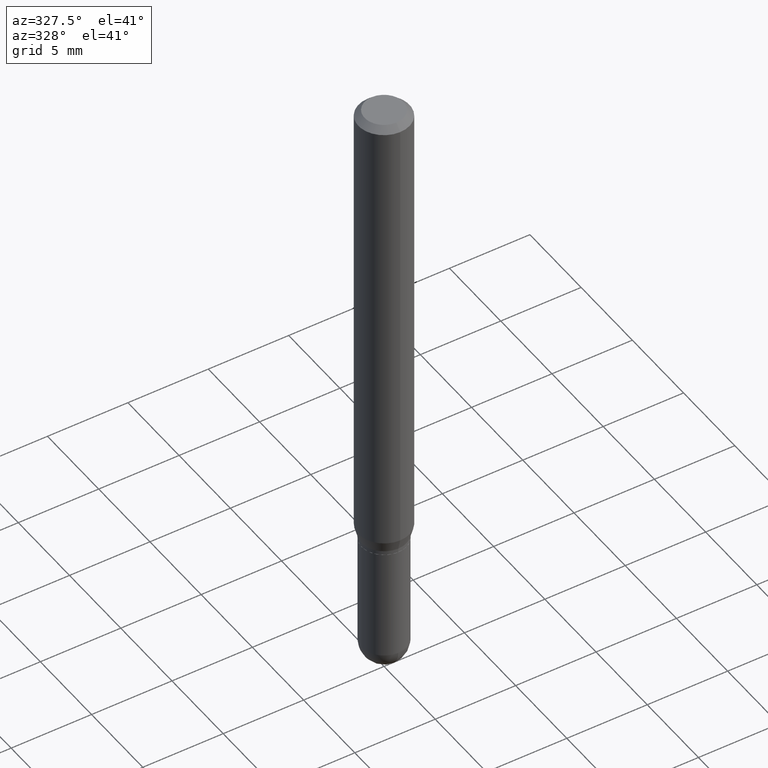
[diagram: clean part render]
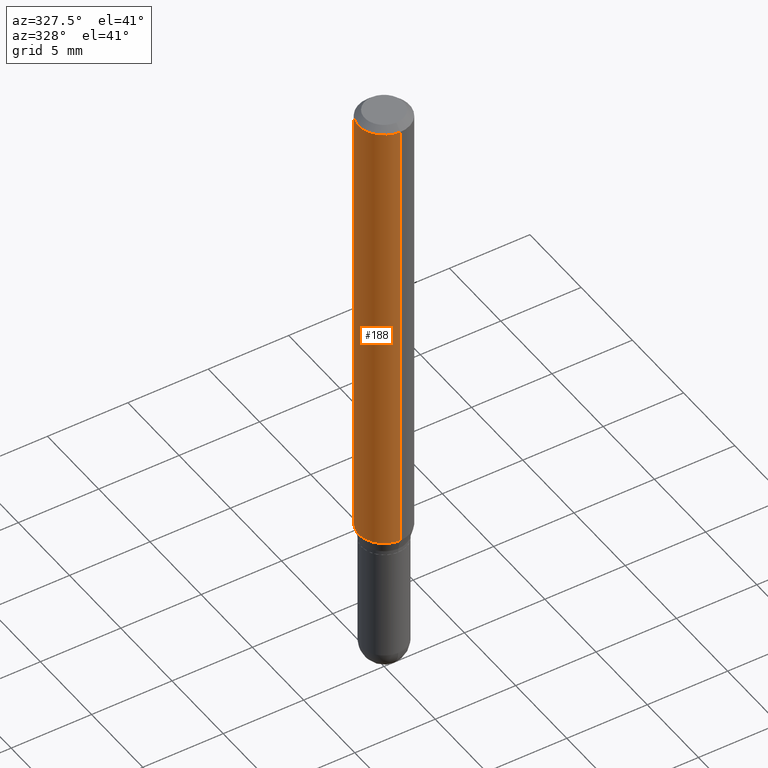
[diagram: same view with one face highlighted and labeled with its STEP entity id]
A machine part, auxiliary view. The second image highlights one B-rep face of the part: STEP entity #188.
In plain terms, the highlighted cylindrical surface (edge-blend (fillet) strip) has radius 1.5875 mm, axis along (-0, 0, 1).
Its self-contained STEP definition (entity closure, byte-faithful):
#15 = CARTESIAN_POINT ( 'NONE',  ( 2.767946174287279245E-29, -3.952888868924657583E-15, -1.132009618943234486 ) ) ;
#20 = FACE_OUTER_BOUND ( 'NONE', #182, .T. ) ;
#45 = AXIS2_PLACEMENT_3D ( 'NONE', #15, #165, #132 ) ;
#62 = CARTESIAN_POINT ( 'NONE',  ( -4.364351673553916201E-16, -0.06250000000000000000, 2.182451016082575473E-16 ) ) ;
#77 = VERTEX_POINT ( 'NONE', #281 ) ;
#91 = CARTESIAN_POINT ( 'NONE',  ( 4.440892098500625669E-16, 0.06250000000000000000, -2.182451016082575473E-16 ) ) ;
#114 = ORIENTED_EDGE ( 'NONE', *, *, #324, .T. ) ;
#115 = ORIENTED_EDGE ( 'NONE', *, *, #229, .F. ) ;
#121 = DIRECTION ( 'NONE',  ( -2.445161355493817803E-29, 3.491921625732120757E-15, 1.000000000000000000 ) ) ;
#132 = DIRECTION ( 'NONE',  ( -6.982962677686265922E-15, -1.000000000000000000, 4.370956789862821150E-15 ) ) ;
#165 = DIRECTION ( 'NONE',  ( -2.445161355493817803E-29, 3.491921625732120757E-15, 1.000000000000000000 ) ) ;
#182 = EDGE_LOOP ( 'NONE', ( #200, #114, #486, #115 ) ) ;
#187 = VECTOR ( 'NONE', #243, 39.37007874015748143 ) ;
#188 = ADVANCED_FACE ( 'NONE', ( #20 ), #375, .T. ) ;
#197 = DIRECTION ( 'NONE',  ( -6.982962677686265922E-15, -1.000000000000000000, 3.483106191921935554E-15 ) ) ;
#200 = ORIENTED_EDGE ( 'NONE', *, *, #300, .F. ) ;
#205 = CARTESIAN_POINT ( 'NONE',  ( 4.440892098500901277E-16, 0.06249999999999603789, -1.132009618943234708 ) ) ;
#229 = EDGE_CURVE ( 'NONE', #77, #470, #330, .T. ) ;
#243 = DIRECTION ( 'NONE',  ( -2.445161355493817803E-29, 3.491921625732120363E-15, 1.000000000000000000 ) ) ;
#251 = AXIS2_PLACEMENT_3D ( 'NONE', #272, #121, #197 ) ;
#255 = CARTESIAN_POINT ( 'NONE',  ( -4.364351673553912750E-16, -0.06250000000000005551, -0.01499999999999979128 ) ) ;
#272 = CARTESIAN_POINT ( 'NONE',  ( 3.667742033240729280E-31, -5.237882438598184587E-17, -0.01500000000000000812 ) ) ;
#281 = CARTESIAN_POINT ( 'NONE',  ( 4.440892098500904235E-16, 0.06249999999999995143, -0.01500000000000022669 ) ) ;
#286 = DIRECTION ( 'NONE',  ( -6.982962677686265922E-15, -1.000000000000000000, 3.491921625732120757E-15 ) ) ;
#300 = EDGE_CURVE ( 'NONE', #317, #77, #321, .T. ) ;
#304 = VECTOR ( 'NONE', #417, 39.37007874015748143 ) ;
#308 = DIRECTION ( 'NONE',  ( -2.445161355493817803E-29, 3.491921625732120757E-15, 1.000000000000000000 ) ) ;
#317 = VERTEX_POINT ( 'NONE', #205 ) ;
#321 = LINE ( 'NONE', #91, #187 ) ;
#324 = EDGE_CURVE ( 'NONE', #317, #430, #450, .T. ) ;
#330 = CIRCLE ( 'NONE', #251, 0.06250000000000000000 ) ;
#346 = EDGE_CURVE ( 'NONE', #430, #470, #376, .T. ) ;
#375 = CYLINDRICAL_SURFACE ( 'NONE', #482, 0.06250000000000000000 ) ;
#376 = LINE ( 'NONE', #62, #304 ) ;
#401 = CARTESIAN_POINT ( 'NONE',  ( 0.000000000000000000, 0.000000000000000000, 0.000000000000000000 ) ) ;
#417 = DIRECTION ( 'NONE',  ( -2.445161355493817803E-29, 3.491921625732120363E-15, 1.000000000000000000 ) ) ;
#430 = VERTEX_POINT ( 'NONE', #462 ) ;
#450 = CIRCLE ( 'NONE', #45, 0.06250000000000000000 ) ;
#462 = CARTESIAN_POINT ( 'NONE',  ( -4.364351673553640100E-16, -0.06250000000000395517, -1.132009618943234264 ) ) ;
#470 = VERTEX_POINT ( 'NONE', #255 ) ;
#482 = AXIS2_PLACEMENT_3D ( 'NONE', #401, #308, #286 ) ;
#486 = ORIENTED_EDGE ( 'NONE', *, *, #346, .T. ) ;